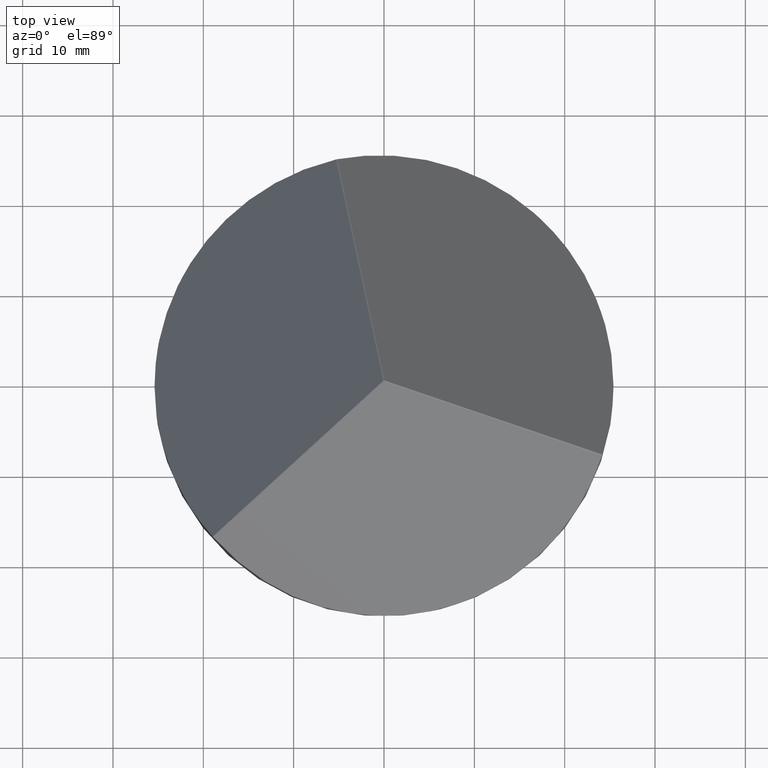
[diagram: clean part render]
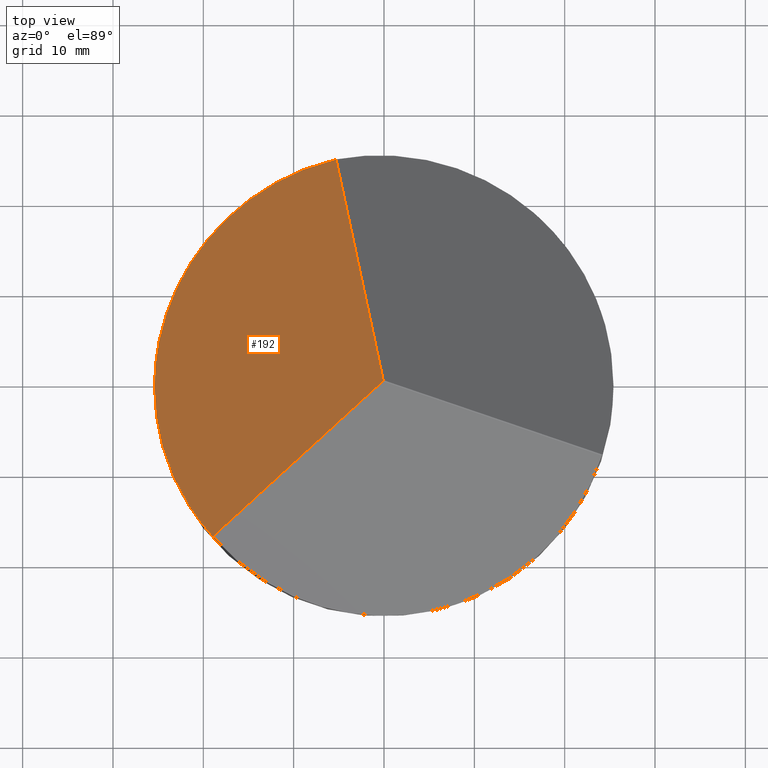
[diagram: same view with one face highlighted and labeled with its STEP entity id]
A machine part, top view. The second image highlights one B-rep face of the part: STEP entity #192.
In plain terms, the highlighted planar face has unit normal (-0.7761, 0.2537, 0.5774).
Its self-contained STEP definition (entity closure, byte-faithful):
#9 =( BOUNDED_CURVE ( )  B_SPLINE_CURVE ( 3, ( #313, #254, #119, #168 ),
 .UNSPECIFIED., .F., .F. ) 
 B_SPLINE_CURVE_WITH_KNOTS ( ( 4, 4 ),
 ( 0.3159145209226036921, 1.044413662635419904 ),
 .UNSPECIFIED. ) 
 CURVE ( )  GEOMETRIC_REPRESENTATION_ITEM ( )  RATIONAL_B_SPLINE_CURVE ( ( 1.000000000000000000, 0.9562609088465704454, 0.9562609088465704454, 1.000000000000000000 ) ) 
 REPRESENTATION_ITEM ( '' )  );
#16 = ORIENTED_EDGE ( 'NONE', *, *, #49, .T. ) ;
#20 = CARTESIAN_POINT ( 'NONE',  ( -16.56111697540093530, 5.413189357140098856, 12.32017074737943041 ) ) ;
#49 = EDGE_CURVE ( 'NONE', #286, #123, #287, .T. ) ;
#68 = CARTESIAN_POINT ( 'NONE',  ( -12.98535369465153266, -11.55585824597818068, 24.58260646783991277 ) ) ;
#80 = LINE ( 'NONE', #221, #280 ) ;
#93 = DIRECTION ( 'NONE',  ( 0.6077332452617961733, 0.5452769656516147645, 0.5773502691896256200 ) ) ;
#102 = CARTESIAN_POINT ( 'NONE',  ( -5.306510482835705034, 24.83950374897926494, 18.91346705688070173 ) ) ;
#119 = CARTESIAN_POINT ( 'NONE',  ( -23.15264638311981571, -12.20290073756595639, 11.19974324389854559 ) ) ;
#123 = VERTEX_POINT ( 'NONE', #328 ) ;
#131 = EDGE_LOOP ( 'NONE', ( #16, #149, #346, #172 ) ) ;
#133 = DIRECTION ( 'NONE',  ( -0.7760903269836911811, 0.2536739462952673496, 0.5773502691896257311 ) ) ;
#149 = ORIENTED_EDGE ( 'NONE', *, *, #252, .T. ) ;
#164 = CARTESIAN_POINT ( 'NONE',  ( -25.39999999999999858, 0.000000000000000000, 2.817124151136544796 ) ) ;
#166 = FACE_OUTER_BOUND ( 'NONE', #131, .T. ) ;
#168 = CARTESIAN_POINT ( 'NONE',  ( -18.95283076346759898, -16.91006227224950820, 18.91346705688047081 ) ) ;
#172 = ORIENTED_EDGE ( 'NONE', *, *, #173, .T. ) ;
#173 = EDGE_CURVE ( 'NONE', #319, #286, #80, .T. ) ;
#192 = ADVANCED_FACE ( 'NONE', ( #166 ), #271, .T. ) ;
#207 = LINE ( 'NONE', #68, #282 ) ;
#218 = AXIS2_PLACEMENT_3D ( 'NONE', #20, #133, #358 ) ;
#221 = CARTESIAN_POINT ( 'NONE',  ( -3.653372313447764697, 16.99441499774780695, 24.58260646783990566 ) ) ;
#234 = VERTEX_POINT ( 'NONE', #249 ) ;
#249 = CARTESIAN_POINT ( 'NONE',  ( -18.95283076346759898, -16.91006227224950820, 18.91346705688047081 ) ) ;
#252 = EDGE_CURVE ( 'NONE', #123, #234, #9, .T. ) ;
#254 = CARTESIAN_POINT ( 'NONE',  ( -25.39999999999999503, -6.308392897773503982, 5.588881620662570882 ) ) ;
#271 = PLANE ( 'NONE',  #218 ) ;
#280 = VECTOR ( 'NONE', #337, 1000.000000000000000 ) ;
#282 = VECTOR ( 'NONE', #93, 1000.000000000000114 ) ;
#286 = VERTEX_POINT ( 'NONE', #292 ) ;
#287 =( BOUNDED_CURVE ( )  B_SPLINE_CURVE ( 3, ( #102, #360, #300, #164 ),
 .UNSPECIFIED., .F., .T. ) 
 B_SPLINE_CURVE_WITH_KNOTS ( ( 4, 4 ),
 ( 5.238771644544158335, 6.599099828102190202 ),
 .UNSPECIFIED. ) 
 CURVE ( )  GEOMETRIC_REPRESENTATION_ITEM ( )  RATIONAL_B_SPLINE_CURVE ( ( 1.000000000000000000, 0.8516463523446279327, 0.8516463523446279327, 1.000000000000000000 ) ) 
 REPRESENTATION_ITEM ( '' )  );
#292 = CARTESIAN_POINT ( 'NONE',  ( -5.306510482835705034, 24.83950374897926494, 18.91346705688070173 ) ) ;
#296 = EDGE_CURVE ( 'NONE', #234, #319, #207, .T. ) ;
#300 = CARTESIAN_POINT ( 'NONE',  ( -25.39999999999999858, 12.50486458425474012, -2.677215275479166490 ) ) ;
#313 = CARTESIAN_POINT ( 'NONE',  ( -25.39999999999999858, 0.000000000000000000, 2.817124151136544796 ) ) ;
#319 = VERTEX_POINT ( 'NONE', #350 ) ;
#328 = CARTESIAN_POINT ( 'NONE',  ( -25.39999999999999858, 0.000000000000000000, 2.817124151136544796 ) ) ;
#337 = DIRECTION ( 'NONE',  ( -0.1683570817218946469, 0.7989509119468816145, -0.5773502691896258421 ) ) ;
#346 = ORIENTED_EDGE ( 'NONE', *, *, #296, .T. ) ;
#350 = CARTESIAN_POINT ( 'NONE',  ( -0.07760903269836753882, 0.02536739462953004759, 36.84504218830037559 ) ) ;
#358 = DIRECTION ( 'NONE',  ( 0.5968741507397004042, 0.000000000000000000, 0.8023348728422324827 ) ) ;
#360 = CARTESIAN_POINT ( 'NONE',  ( -17.53543295216929820, 22.22701575674349783, 3.622873511934407986 ) ) ;